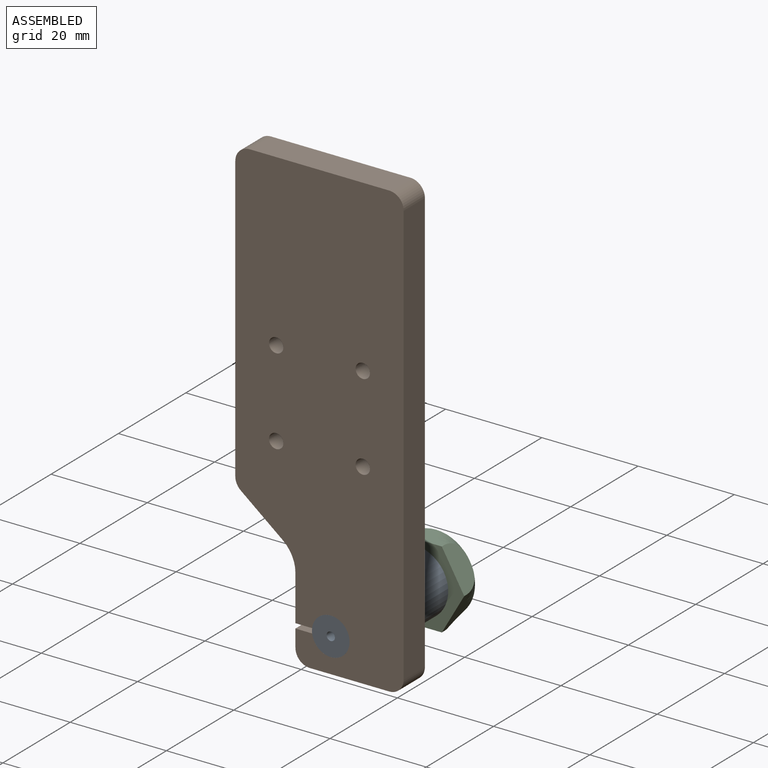
[diagram: assembled view]
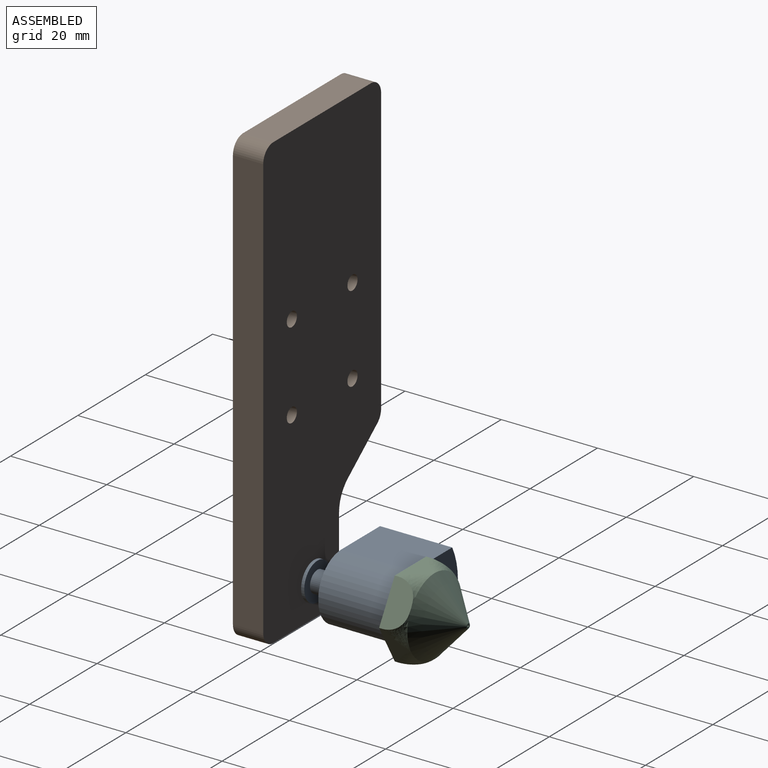
[diagram: assembled view, second angle]
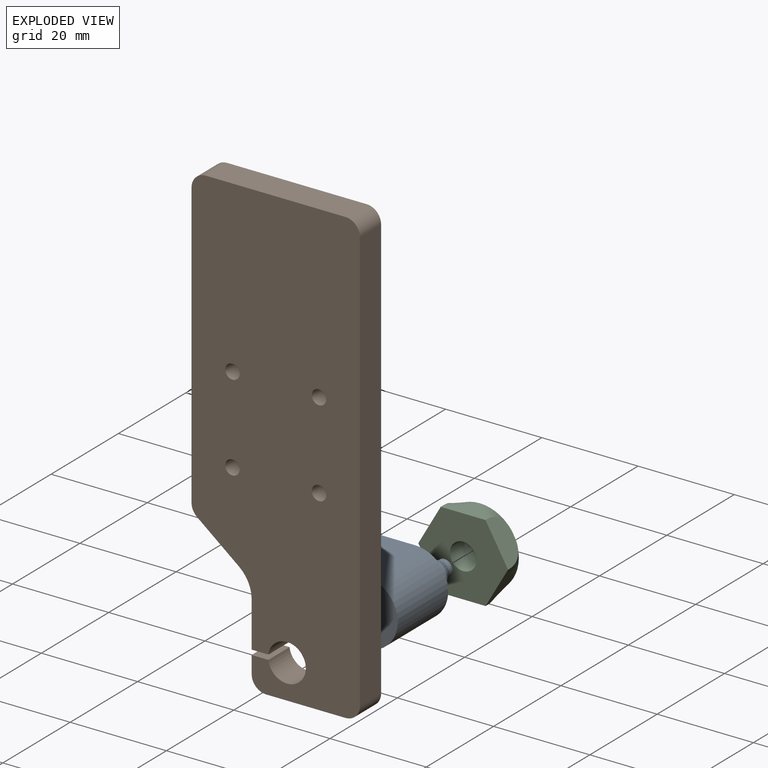
[diagram: exploded view]
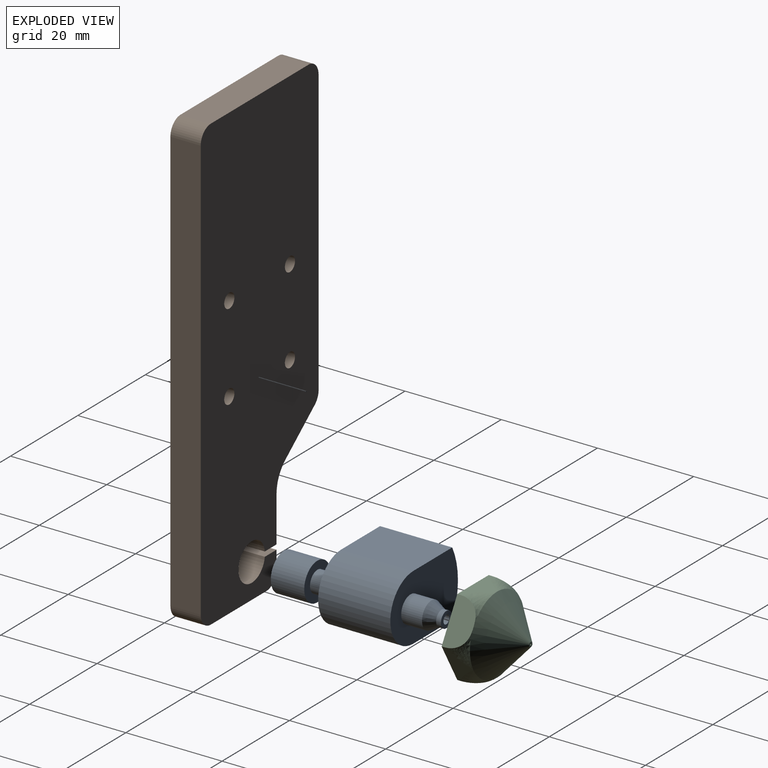
[diagram: exploded view, second angle]
ASSEMBLY  parts=3 mates=6
PART A: 15 faces, bbox 20.1x33.8x13.7 mm
  f0: cylinder r=14.6mm len=15mm, axis (0,1,0), area 213.2mm2, adj f1,f4,f5,f6
  f1: plane 15x11.55mm, normal (0,0,-1), area 173.2mm2, adj f0,f2,f5,f6
  f2: cylinder r=6.83mm len=15mm, axis (0,1,0), area 321.9mm2, adj f1,f4,f5,f6
  f3: cylinder r=0.88mm len=33.76mm, axis (0,1,0), area 185.6mm2, adj f9,f12
  f4: plane 15x11.55mm, normal (0,0,1), area 173.3mm2, adj f0,f2,f5,f6
  f5: plane 20.08x13.66mm, normal (0,-1,0), area 231.4mm2, adj f0,f1,f2,f4,f13
  f6: plane 20.08x13.66mm, normal (0,1,0), area 222.8mm2, adj f0,f1,f2,f4,f10
  f7: cone r=2.76mm half-angle=28.1deg, axis (0,-1,0), area 33.2mm2, adj f8,f10
  f8: cylinder r=1.62mm len=3.25mm, axis (0,-1,0), area 10.2mm2, adj f7,f9
  f9: plane 3.25x3.25mm, normal (0,1,0), area 5.9mm2, adj f3,f8
  f10: cylinder r=2.76mm len=5.52mm, axis (0,-1,0), area 75.1mm2, adj f6,f7
  f11: cylinder r=3.92mm len=7.83mm, axis (0,1,0), area 171mm2, adj f12,f14
  f12: plane 7.83x7.83mm, normal (0,-1,0), area 45.7mm2, adj f3,f11
  f13: cylinder r=2.21mm len=4.41mm, axis (0,1,0), area 60.3mm2, adj f5,f14
  f14: plane 7.83x7.83mm, normal (0,1,0), area 32.9mm2, adj f11,f13
PART B: 22 faces, bbox 35x6.3x94.1 mm
  f0: plane 6.3x3.62mm, normal (-1,0,0), area 22.8mm2, adj f12,f13,f16,f20
  f1: plane 88.12x6.3mm, normal (1,0,0), area 555.1mm2, adj f12,f13,f17,f18
  f2: plane 29x6.3mm, normal (0,0,1), area 182.7mm2, adj f12,f13,f18,f19
  f3: plane 59.26x6.3mm, normal (-1,0,0), area 373.3mm2, adj f12,f13,f15,f19
  f4: plane 8.75x7mm, normal (-0.62,0,-0.78), area 70.6mm2, adj f12,f13,f14,f15
  f5: plane 9.44x6.3mm, normal (-1,0,0), area 59.4mm2, adj f12,f13,f14,f21
  f6: cylinder r=1.5mm len=6.3mm, axis (0,1,0), area 59.4mm2, adj f12,f13
  f7: cylinder r=1.5mm len=6.3mm, axis (0,1,0), area 59.4mm2, adj f12,f13
  f8: cylinder r=1.5mm len=6.3mm, axis (0,1,0), area 59.4mm2, adj f12,f13
  f9: cylinder r=3.92mm len=7.83mm, axis (0,1,0), area 148.7mm2, adj f12,f13,f20,f21
  f10: plane 16.5x6.3mm, normal (0,0,-1), area 104mm2, adj f12,f13,f16,f17
  f11: cylinder r=1.5mm len=6.3mm, axis (0,1,0), area 59.4mm2, adj f12,f13
  f12: plane 94.12x35mm, normal (0,-1,0), area 2890mm2, adj f0,f1,f2,f3,f4,f5,f6,f7
  f13: plane 94.12x35mm, normal (0,1,0), area 2890mm2, adj f0,f1,f2,f3,f4,f5,f6,f7
  f14: cylinder r=7mm len=6.3mm, axis (0,-1,0), area 39.5mm2, adj f4,f5,f12,f13
  f15: cylinder r=3mm len=6.3mm, axis (0,-1,0), area 16.9mm2, adj f3,f4,f12,f13
  f16: cylinder r=3mm len=6.3mm, axis (0,1,0), area 29.7mm2, adj f0,f10,f12,f13
  f17: cylinder r=3mm len=6.3mm, axis (0,1,0), area 29.7mm2, adj f1,f10,f12,f13
  f18: cylinder r=3mm len=6.3mm, axis (0,-1,0), area 29.7mm2, adj f1,f2,f12,f13
  f19: cylinder r=3mm len=6.3mm, axis (0,1,0), area 29.7mm2, adj f2,f3,f12,f13
  f20: plane 6.3x3.46mm, normal (0,0,1), area 21.8mm2, adj f0,f9,f12,f13
  f21: plane 6.3x3.46mm, normal (0,0,-1), area 21.8mm2, adj f5,f9,f12,f13
PART C: 20 faces, bbox 22.9x14.1x20.1 mm
  f0: plane 9.33x5mm, normal (0,0,1), area 23.2mm2, adj f1,f5,f6,f11,f14
  f1: plane 10.17x7.09mm, normal (-0.87,0,0.5), area 39.4mm2, adj f0,f2,f6,f11,f12
  f2: plane 8.08x5mm, normal (-0.87,0,-0.5), area 23.2mm2, adj f1,f3,f6,f12,f15
  f3: plane 11.42x7.09mm, normal (0,0,-1), area 39.4mm2, adj f2,f4,f6,f13,f15
  f4: plane 8.08x5mm, normal (0.87,0,-0.5), area 23.2mm2, adj f3,f5,f6,f10,f13
  f5: plane 10.17x7.09mm, normal (0.87,0,0.5), area 39.4mm2, adj f0,f4,f6,f10,f14
  f6: plane 18.65x16.15mm, normal (0,-1,0), area 201.9mm2, adj f0,f1,f2,f3,f4,f5,f7
  f7: cylinder r=2.76mm len=5.52mm, axis (0,-1,0), area 75.1mm2, adj f6,f16
  f8: plane 1x1mm, normal (0,1,0), area 0.7mm2, adj f9,f19
  f9: cone r=8.08mm half-angle=47.3deg, axis (0,-1,0), area 277.9mm2, adj f8,f10,f11,f12,f13,f14,f15
  f10: bspline ~8.19x4.69mm, area 12.2mm2, adj f4,f5,f9
  f11: bspline ~7.06x4.69mm, area 12.2mm2, adj f0,f1,f9
  f12: bspline ~8.19x4.69mm, area 12.2mm2, adj f1,f2,f9
  f13: bspline ~7.12x5.91mm, area 12.2mm2, adj f3,f4,f9
  f14: bspline ~7.06x4.69mm, area 12.2mm2, adj f0,f5,f9
  f15: bspline ~7.12x5.91mm, area 12.2mm2, adj f2,f3,f9
  f16: cone r=2.76mm half-angle=25.2deg, axis (0,-1,0), area 36.7mm2, adj f7,f17
  f17: cylinder r=1.62mm len=3.25mm, axis (0,-1,0), area 10.2mm2, adj f16,f18
  f18: plane 3.25x3.25mm, normal (0,-1,0), area 8.2mm2, adj f17,f19
  f19: cylinder r=0.17mm len=4.26mm, axis (0,-1,0), area 4.7mm2, adj f8,f18
PLACE A t=(-3.96,3.06,-5.7)mm fixed
PLACE B t=(-11.42,-16.94,24.43)mm
PLACE C t=(8.43,8.06,1.13)mm
MATE cylindrical C.f7 <-> A.f3  axis (0,-1,0) through (8.43,5.23,1.13)mm
MATE parallel C.f3 <-> A.f1  axis (0,0,-1) through (8.43,3.06,-6.94)mm
MATE planar C.f17 <-> A.f6  axis (0,-1,0) through (8.43,3.06,1.13)mm
MATE cylindrical B.f9 <-> A.f3  axis (0,1,0) through (8.43,-16.94,1.13)mm
MATE parallel B.f10 <-> A.f1  axis (0,0,-1) through (12.33,-23.24,-5.98)mm
MATE planar A.f3 <-> B.f12  axis (0,-1,0) through (8.43,-23.24,1.13)mm
